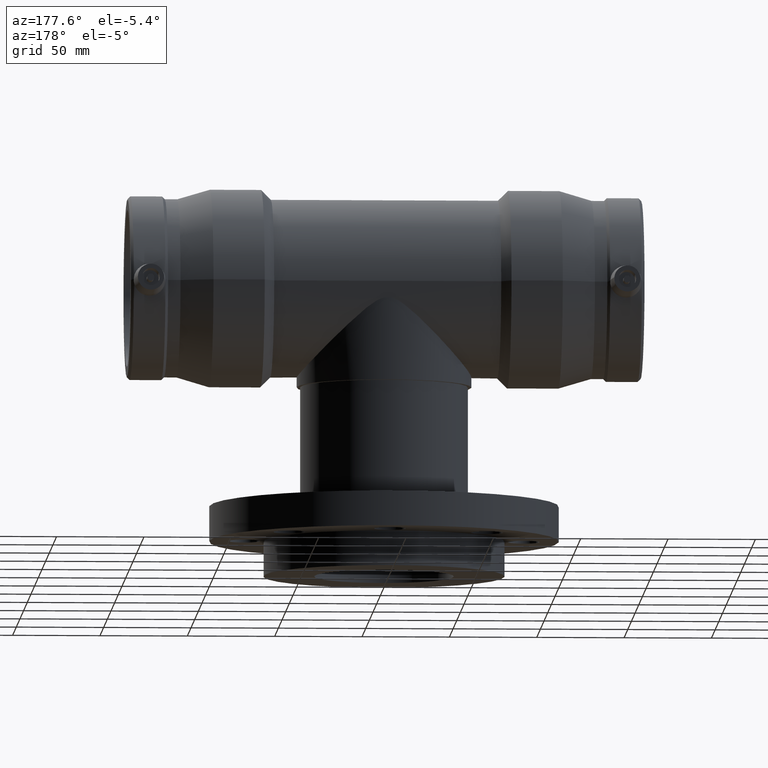
[diagram: clean part render]
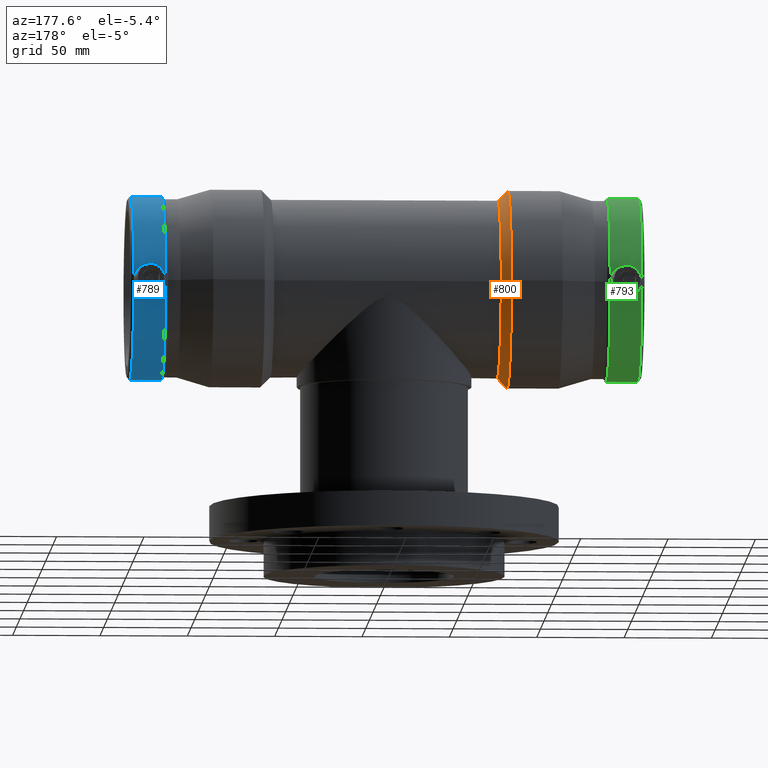
[diagram: same view with three faces highlighted in distinct colors, each labeled with its STEP entity id]
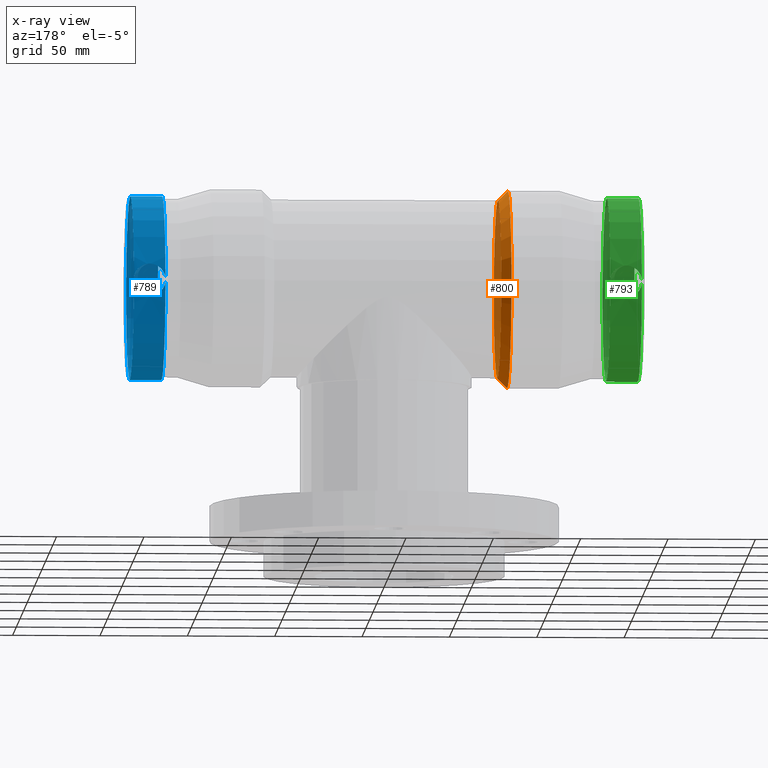
[diagram: x-ray of the same camera — body ghosted, the three highlighted faces saturated]
A machine part, auxiliary view with three faces highlighted in distinct colors.
The next image is the same camera in x-ray (body ghosted, the three faces saturated) — at least one of them is partly hidden behind the body in this view.
Their STEP definitions:

[orange] entity #800 — the highlighted conical surface has half-angle 45 deg.
#21=CONICAL_SURFACE('',#917,53.675,45.0000000000001);
#97=FACE_BOUND('',#382,.T.);
#144=CIRCLE('',#868,50.85);
#168=CIRCLE('',#916,56.5);
#264=FACE_OUTER_BOUND('',#381,.T.);
#381=EDGE_LOOP('',(#713));
#382=EDGE_LOOP('',(#714));
#465=VERTEX_POINT('',#1671);
#491=VERTEX_POINT('',#1846);
#539=EDGE_CURVE('',#465,#465,#144,.T.);
#573=EDGE_CURVE('',#491,#491,#168,.T.);
#713=ORIENTED_EDGE('',*,*,#573,.T.);
#714=ORIENTED_EDGE('',*,*,#539,.F.);
#800=ADVANCED_FACE('',(#264,#97),#21,.T.);
#868=AXIS2_PLACEMENT_3D('',#1672,#1049,#1050);
#916=AXIS2_PLACEMENT_3D('',#1847,#1145,#1146);
#917=AXIS2_PLACEMENT_3D('',#1848,#1147,#1148);
#1049=DIRECTION('center_axis',(1.,0.,0.));
#1050=DIRECTION('ref_axis',(0.,0.,-1.));
#1145=DIRECTION('center_axis',(1.,0.,0.));
#1146=DIRECTION('ref_axis',(0.,0.,-1.));
#1147=DIRECTION('center_axis',(-1.,0.,0.));
#1148=DIRECTION('ref_axis',(0.,1.,0.));
#1671=CARTESIAN_POINT('',(-64.974,50.85,0.));
#1672=CARTESIAN_POINT('Origin',(-64.974,0.,0.));
#1846=CARTESIAN_POINT('',(-70.624,56.5,0.));
#1847=CARTESIAN_POINT('Origin',(-70.624,0.,0.));
#1848=CARTESIAN_POINT('Origin',(-67.799,0.,0.));

[blue] entity #789 — the highlighted cylindrical surface (partial cylindrical patch) has radius 52.545 mm, axis along (1, 0, 0).
#157=CIRCLE('',#895,52.545);
#158=CIRCLE('',#896,52.545);
#206=CYLINDRICAL_SURFACE('',#894,52.545);
#253=FACE_OUTER_BOUND('',#363,.T.);
#363=EDGE_LOOP('',(#679,#680,#681,#682,#683));
#427=B_SPLINE_CURVE_WITH_KNOTS('',3,(#1724,#1725,#1726,#1727,#1728,#1729,
#1730,#1731,#1732,#1733),.UNSPECIFIED.,.F.,.F.,(4,2,2,2,4),(1.46755560983705,
1.72686363447817,2.07198239166728,2.41773607312269,2.76348975457811),
 .UNSPECIFIED.);
#428=B_SPLINE_CURVE_WITH_KNOTS('',3,(#1734,#1735,#1736,#1737,#1738,#1739,
#1740,#1741,#1742,#1743,#1744,#1745,#1746,#1747,#1748,#1749,#1750,#1751,
#1752),.UNSPECIFIED.,.F.,.F.,(4,2,2,2,3,2,2,2,4),(4.23104536441523,4.49035338882164,
4.83547214569848,5.18122582684104,5.52697950798361,5.87273318912617,6.21848687026874,
6.56360562714557,6.82291365155205),.UNSPECIFIED.);
#429=B_SPLINE_CURVE_WITH_KNOTS('',3,(#1753,#1754,#1755,#1756,#1757,#1758,
#1759,#1760,#1761,#1762),.UNSPECIFIED.,.F.,.F.,(4,2,2,2,4),(2.76348975457811,
3.10924343603352,3.45499711748893,3.80011587467805,4.05942389931908),
 .UNSPECIFIED.);
#475=VERTEX_POINT('',#1701);
#476=VERTEX_POINT('',#1702);
#477=VERTEX_POINT('',#1711);
#478=VERTEX_POINT('',#1712);
#480=VERTEX_POINT('',#1723);
#554=EDGE_CURVE('',#477,#480,#427,.T.);
#555=EDGE_CURVE('',#476,#478,#428,.T.);
#556=EDGE_CURVE('',#480,#475,#429,.T.);
#557=EDGE_CURVE('',#476,#475,#157,.T.);
#558=EDGE_CURVE('',#478,#477,#158,.T.);
#679=ORIENTED_EDGE('',*,*,#554,.T.);
#680=ORIENTED_EDGE('',*,*,#556,.T.);
#681=ORIENTED_EDGE('',*,*,#557,.F.);
#682=ORIENTED_EDGE('',*,*,#555,.T.);
#683=ORIENTED_EDGE('',*,*,#558,.T.);
#789=ADVANCED_FACE('',(#253),#206,.T.);
#894=AXIS2_PLACEMENT_3D('',#1764,#1101,#1102);
#895=AXIS2_PLACEMENT_3D('',#1765,#1103,#1104);
#896=AXIS2_PLACEMENT_3D('',#1766,#1105,#1106);
#1101=DIRECTION('center_axis',(1.,0.,0.));
#1102=DIRECTION('ref_axis',(0.,1.,0.));
#1103=DIRECTION('center_axis',(1.,0.,0.));
#1104=DIRECTION('ref_axis',(0.,0.,-1.));
#1105=DIRECTION('center_axis',(1.,0.,0.));
#1106=DIRECTION('ref_axis',(0.,0.,-1.));
#1701=CARTESIAN_POINT('',(145.42365,52.5378023591251,-0.869682858005089));
#1702=CARTESIAN_POINT('',(145.42365,52.5378023591251,0.869682858005089));
#1711=CARTESIAN_POINT('',(127.276350001703,52.5378023592946,-0.869682882075964));
#1712=CARTESIAN_POINT('',(127.276350001703,52.5378023592946,0.86968288207591));
#1723=CARTESIAN_POINT('',(136.35,51.7359223833308,-9.18538840474205));
#1724=CARTESIAN_POINT('Ctrl Pts',(127.276350002266,52.5378023587277,-0.869682882013457));
#1725=CARTESIAN_POINT('Ctrl Pts',(127.359876580148,52.5231543841481,-1.75457139636308));
#1726=CARTESIAN_POINT('Ctrl Pts',(127.577903701597,52.4846354125463,-2.65746964939109));
#1727=CARTESIAN_POINT('Ctrl Pts',(128.387671818446,52.3525010471664,-4.63375747193001));
#1728=CARTESIAN_POINT('Ctrl Pts',(129.084770602877,52.2452658950976,-5.66429347880042));
#1729=CARTESIAN_POINT('Ctrl Pts',(130.696725943097,52.0424509733335,-7.29642458211612));
#1730=CARTESIAN_POINT('Ctrl Pts',(131.720669006949,51.9335517317579,-8.00701234940965));
#1731=CARTESIAN_POINT('Ctrl Pts',(133.970929312444,51.7790992511323,-8.95158800855754));
#1732=CARTESIAN_POINT('Ctrl Pts',(135.197487728482,51.7359223833308,-9.18538840474205));
#1733=CARTESIAN_POINT('Ctrl Pts',(136.35,51.7359223833308,-9.18538840474205));
#1734=CARTESIAN_POINT('Ctrl Pts',(145.42365,52.5378023591251,0.869682858005083));
#1735=CARTESIAN_POINT('Ctrl Pts',(145.340123424424,52.5231543849463,1.75457137257873));
#1736=CARTESIAN_POINT('Ctrl Pts',(145.122096298403,52.4846354125462,2.65746964939134));
#1737=CARTESIAN_POINT('Ctrl Pts',(144.312328181554,52.3525010471664,4.63375747193001));
#1738=CARTESIAN_POINT('Ctrl Pts',(143.615229397123,52.2452658950976,5.66429347880042));
#1739=CARTESIAN_POINT('Ctrl Pts',(142.003274056903,52.0424509733335,7.29642458211612));
#1740=CARTESIAN_POINT('Ctrl Pts',(140.979330993051,51.9335517317579,8.00701234940963));
#1741=CARTESIAN_POINT('Ctrl Pts',(138.729070687556,51.7790992511323,8.95158800855753));
#1742=CARTESIAN_POINT('Ctrl Pts',(137.502512271518,51.7359223833308,9.18538840474206));
#1743=CARTESIAN_POINT('Ctrl Pts',(136.35,51.7359223833308,9.18538840474206));
#1744=CARTESIAN_POINT('Ctrl Pts',(135.197487728482,51.7359223833308,9.18538840474206));
#1745=CARTESIAN_POINT('Ctrl Pts',(133.970929312444,51.7790992511323,8.95158800855754));
#1746=CARTESIAN_POINT('Ctrl Pts',(131.720669006949,51.9335517317579,8.00701234940965));
#1747=CARTESIAN_POINT('Ctrl Pts',(130.696725943097,52.0424509733335,7.29642458211612));
#1748=CARTESIAN_POINT('Ctrl Pts',(129.084770602877,52.2452658950976,5.66429347880042));
#1749=CARTESIAN_POINT('Ctrl Pts',(128.387671818446,52.3525010471664,4.63375747193001));
#1750=CARTESIAN_POINT('Ctrl Pts',(127.577903701597,52.4846354125463,2.6574696493911));
#1751=CARTESIAN_POINT('Ctrl Pts',(127.359876580148,52.5231543841481,1.75457139636303));
#1752=CARTESIAN_POINT('Ctrl Pts',(127.276350002266,52.5378023587277,0.869682882013406));
#1753=CARTESIAN_POINT('Ctrl Pts',(136.35,51.7359223833308,-9.18538840474205));
#1754=CARTESIAN_POINT('Ctrl Pts',(137.502512271518,51.7359223833308,-9.18538840474205));
#1755=CARTESIAN_POINT('Ctrl Pts',(138.729070687556,51.7790992511323,-8.95158800855754));
#1756=CARTESIAN_POINT('Ctrl Pts',(140.979330993051,51.9335517317579,-8.00701234940965));
#1757=CARTESIAN_POINT('Ctrl Pts',(142.003274056903,52.0424509733335,-7.29642458211612));
#1758=CARTESIAN_POINT('Ctrl Pts',(143.615229397123,52.2452658950976,-5.66429347880042));
#1759=CARTESIAN_POINT('Ctrl Pts',(144.312328181554,52.3525010471664,-4.63375747193001));
#1760=CARTESIAN_POINT('Ctrl Pts',(145.122096298403,52.4846354125462,-2.65746964939133));
#1761=CARTESIAN_POINT('Ctrl Pts',(145.340123424424,52.5231543849463,-1.75457137257873));
#1762=CARTESIAN_POINT('Ctrl Pts',(145.42365,52.5378023591251,-0.869682858005083));
#1764=CARTESIAN_POINT('Origin',(136.35,0.,0.));
#1765=CARTESIAN_POINT('Origin',(145.42365,0.,0.));
#1766=CARTESIAN_POINT('Origin',(127.27635,0.,0.));

[green] entity #793 — the highlighted cylindrical surface (partial cylindrical patch) has radius 52.545 mm, axis along (1, 0, 0).
#161=CIRCLE('',#903,52.545);
#162=CIRCLE('',#904,52.545);
#209=CYLINDRICAL_SURFACE('',#902,52.545);
#257=FACE_OUTER_BOUND('',#368,.T.);
#368=EDGE_LOOP('',(#694,#695,#696,#697,#698));
#432=B_SPLINE_CURVE_WITH_KNOTS('',3,(#1789,#1790,#1791,#1792,#1793,#1794,
#1795,#1796,#1797,#1798),.UNSPECIFIED.,.F.,.F.,(4,2,2,2,4),(5.52697950915621,
5.87273319061163,6.21848687206704,6.56360562925615,6.82291365389721),
 .UNSPECIFIED.);
#433=B_SPLINE_CURVE_WITH_KNOTS('',3,(#1799,#1800,#1801,#1802,#1803,#1804,
#1805,#1806,#1807,#1808),.UNSPECIFIED.,.F.,.F.,(4,2,2,2,4),(4.23104536441522,
4.49035338905627,4.83547214624538,5.1812258277008,5.52697950915621),
 .UNSPECIFIED.);
#434=B_SPLINE_CURVE_WITH_KNOTS('',3,(#1809,#1810,#1811,#1812,#1813,#1814,
#1815,#1816,#1817,#1818,#1819,#1820,#1821,#1822,#1823,#1824,#1825,#1826),
 .UNSPECIFIED.,.F.,.F.,(4,2,2,2,2,2,2,2,4),(1.46755560983711,1.72686363447817,
2.07198239166728,2.41773607312269,2.76348975457811,3.10924343603352,3.45499711748893,
3.80011587467805,4.0594238993191),.UNSPECIFIED.);
#481=VERTEX_POINT('',#1768);
#482=VERTEX_POINT('',#1769);
#483=VERTEX_POINT('',#1778);
#484=VERTEX_POINT('',#1779);
#485=VERTEX_POINT('',#1788);
#563=EDGE_CURVE('',#485,#483,#432,.T.);
#564=EDGE_CURVE('',#481,#485,#433,.T.);
#565=EDGE_CURVE('',#484,#482,#434,.T.);
#566=EDGE_CURVE('',#482,#481,#161,.T.);
#567=EDGE_CURVE('',#484,#483,#162,.T.);
#694=ORIENTED_EDGE('',*,*,#565,.T.);
#695=ORIENTED_EDGE('',*,*,#566,.T.);
#696=ORIENTED_EDGE('',*,*,#564,.T.);
#697=ORIENTED_EDGE('',*,*,#563,.T.);
#698=ORIENTED_EDGE('',*,*,#567,.F.);
#793=ADVANCED_FACE('',(#257),#209,.T.);
#902=AXIS2_PLACEMENT_3D('',#1827,#1117,#1118);
#903=AXIS2_PLACEMENT_3D('',#1828,#1119,#1120);
#904=AXIS2_PLACEMENT_3D('',#1829,#1121,#1122);
#1117=DIRECTION('center_axis',(1.,0.,0.));
#1118=DIRECTION('ref_axis',(0.,1.,0.));
#1119=DIRECTION('center_axis',(1.,0.,0.));
#1120=DIRECTION('ref_axis',(0.,0.,-1.));
#1121=DIRECTION('center_axis',(1.,0.,0.));
#1122=DIRECTION('ref_axis',(0.,0.,-1.));
#1768=CARTESIAN_POINT('',(-145.423649998297,52.5378023592945,-0.869682882076407));
#1769=CARTESIAN_POINT('',(-145.423649998297,52.5378023592945,0.869682882076174));
#1778=CARTESIAN_POINT('',(-127.27635,52.5378023591251,-0.869682858004899));
#1779=CARTESIAN_POINT('',(-127.27635,52.5378023591251,0.869682858004899));
#1788=CARTESIAN_POINT('',(-136.35,51.7359223833308,-9.18538840474205));
#1789=CARTESIAN_POINT('Ctrl Pts',(-136.35,51.7359223833308,-9.18538840474205));
#1790=CARTESIAN_POINT('Ctrl Pts',(-135.197487728482,51.7359223833308,-9.18538840474205));
#1791=CARTESIAN_POINT('Ctrl Pts',(-133.970929312444,51.7790992511323,-8.95158800855754));
#1792=CARTESIAN_POINT('Ctrl Pts',(-131.720669006949,51.9335517317579,-8.00701234940965));
#1793=CARTESIAN_POINT('Ctrl Pts',(-130.696725943097,52.0424509733335,-7.29642458211612));
#1794=CARTESIAN_POINT('Ctrl Pts',(-129.084770602877,52.2452658950976,-5.66429347880042));
#1795=CARTESIAN_POINT('Ctrl Pts',(-128.387671818446,52.3525010471664,-4.63375747193001));
#1796=CARTESIAN_POINT('Ctrl Pts',(-127.577903701597,52.4846354125463,-2.65746964939128));
#1797=CARTESIAN_POINT('Ctrl Pts',(-127.359876575576,52.5231543849463,-1.75457137257861));
#1798=CARTESIAN_POINT('Ctrl Pts',(-127.27635,52.5378023591251,-0.869682858004899));
#1799=CARTESIAN_POINT('Ctrl Pts',(-145.423649997734,52.5378023587277,-0.869682882013899));
#1800=CARTESIAN_POINT('Ctrl Pts',(-145.340123419852,52.5231543841481,-1.75457139636334));
#1801=CARTESIAN_POINT('Ctrl Pts',(-145.122096298403,52.4846354125462,-2.65746964939127));
#1802=CARTESIAN_POINT('Ctrl Pts',(-144.312328181554,52.3525010471664,-4.63375747193001));
#1803=CARTESIAN_POINT('Ctrl Pts',(-143.615229397123,52.2452658950976,-5.66429347880042));
#1804=CARTESIAN_POINT('Ctrl Pts',(-142.003274056903,52.0424509733335,-7.29642458211612));
#1805=CARTESIAN_POINT('Ctrl Pts',(-140.979330993051,51.9335517317579,-8.00701234940963));
#1806=CARTESIAN_POINT('Ctrl Pts',(-138.729070687556,51.7790992511323,-8.95158800855753));
#1807=CARTESIAN_POINT('Ctrl Pts',(-137.502512271518,51.7359223833308,-9.18538840474205));
#1808=CARTESIAN_POINT('Ctrl Pts',(-136.35,51.7359223833308,-9.18538840474205));
#1809=CARTESIAN_POINT('Ctrl Pts',(-127.27635,52.5378023591251,0.8696828580049));
#1810=CARTESIAN_POINT('Ctrl Pts',(-127.359876575576,52.5231543849463,1.75457137257861));
#1811=CARTESIAN_POINT('Ctrl Pts',(-127.577903701597,52.4846354125462,2.65746964939128));
#1812=CARTESIAN_POINT('Ctrl Pts',(-128.387671818446,52.3525010471664,4.63375747193001));
#1813=CARTESIAN_POINT('Ctrl Pts',(-129.084770602877,52.2452658950976,5.66429347880042));
#1814=CARTESIAN_POINT('Ctrl Pts',(-130.696725943097,52.0424509733335,7.29642458211612));
#1815=CARTESIAN_POINT('Ctrl Pts',(-131.720669006949,51.9335517317579,8.00701234940965));
#1816=CARTESIAN_POINT('Ctrl Pts',(-133.970929312444,51.7790992511323,8.95158800855754));
#1817=CARTESIAN_POINT('Ctrl Pts',(-135.197487728482,51.7359223833308,9.18538840474206));
#1818=CARTESIAN_POINT('Ctrl Pts',(-137.502512271518,51.7359223833308,9.18538840474206));
#1819=CARTESIAN_POINT('Ctrl Pts',(-138.729070687556,51.7790992511323,8.95158800855754));
#1820=CARTESIAN_POINT('Ctrl Pts',(-140.979330993051,51.9335517317579,8.00701234940965));
#1821=CARTESIAN_POINT('Ctrl Pts',(-142.003274056903,52.0424509733335,7.29642458211612));
#1822=CARTESIAN_POINT('Ctrl Pts',(-143.615229397123,52.2452658950976,5.66429347880042));
#1823=CARTESIAN_POINT('Ctrl Pts',(-144.312328181554,52.3525010471664,4.63375747193001));
#1824=CARTESIAN_POINT('Ctrl Pts',(-145.122096298403,52.4846354125463,2.65746964939127));
#1825=CARTESIAN_POINT('Ctrl Pts',(-145.340123419852,52.5231543841481,1.75457139636311));
#1826=CARTESIAN_POINT('Ctrl Pts',(-145.423649997734,52.5378023587277,0.869682882013663));
#1827=CARTESIAN_POINT('Origin',(-136.35,0.,0.));
#1828=CARTESIAN_POINT('Origin',(-145.42365,0.,0.));
#1829=CARTESIAN_POINT('Origin',(-127.27635,0.,0.));